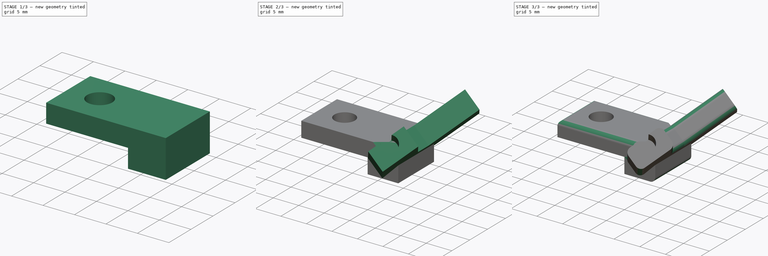
[diagram: build sequence overview — one tinted view per stage of 3, left to right]
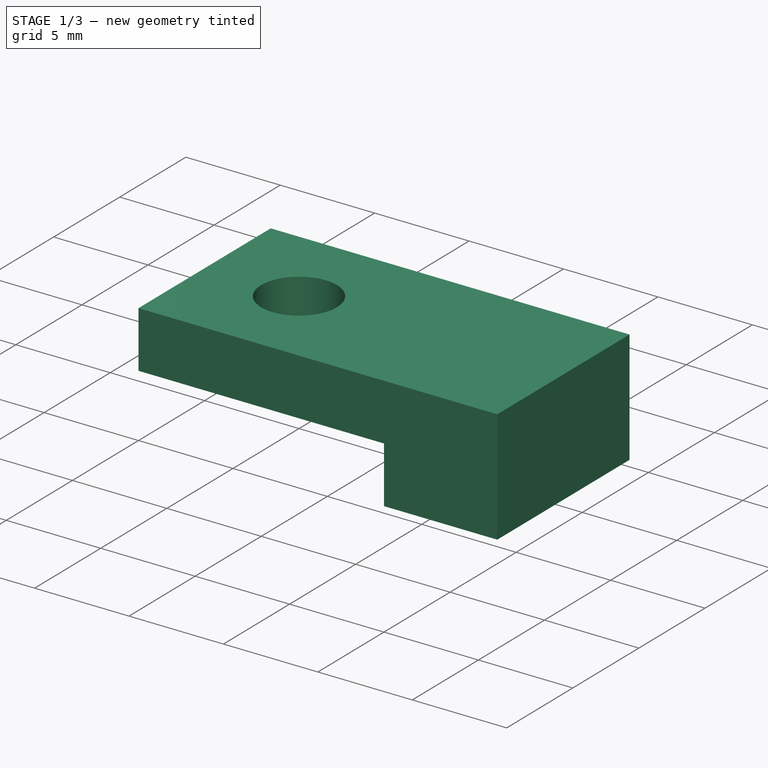
[diagram: stage 1 of 3 — iso view after this stage's code; geometry added in this stage tinted green]
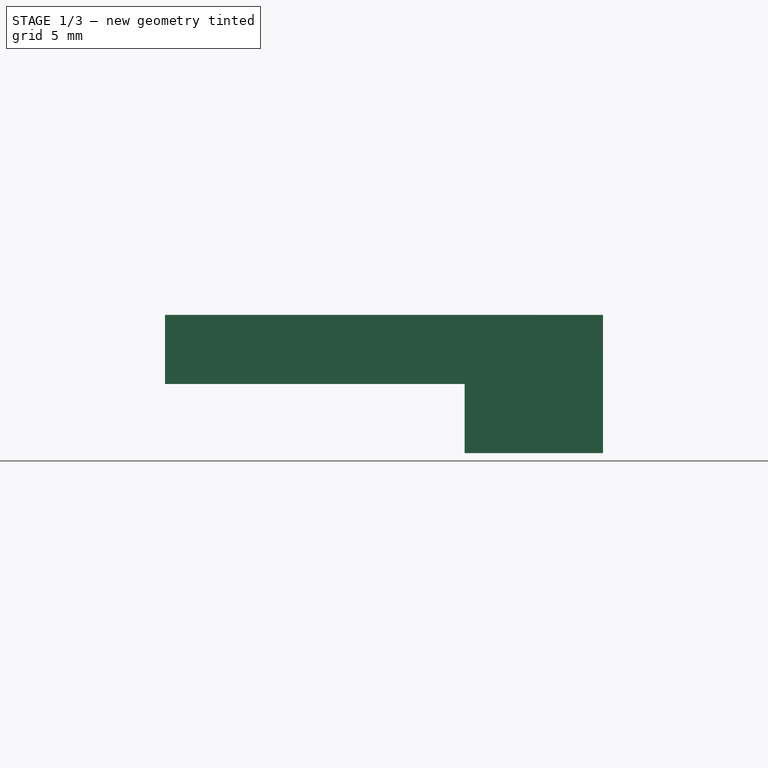
[diagram: stage 1 of 3 — front view after this stage's code; geometry added in this stage tinted green]
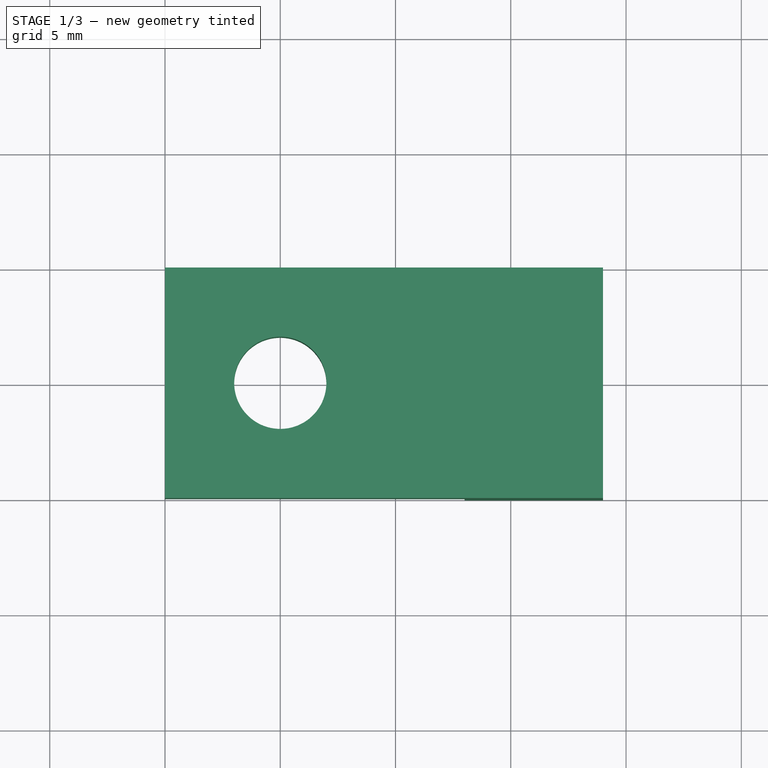
[diagram: stage 1 of 3 — top view after this stage's code; geometry added in this stage tinted green]
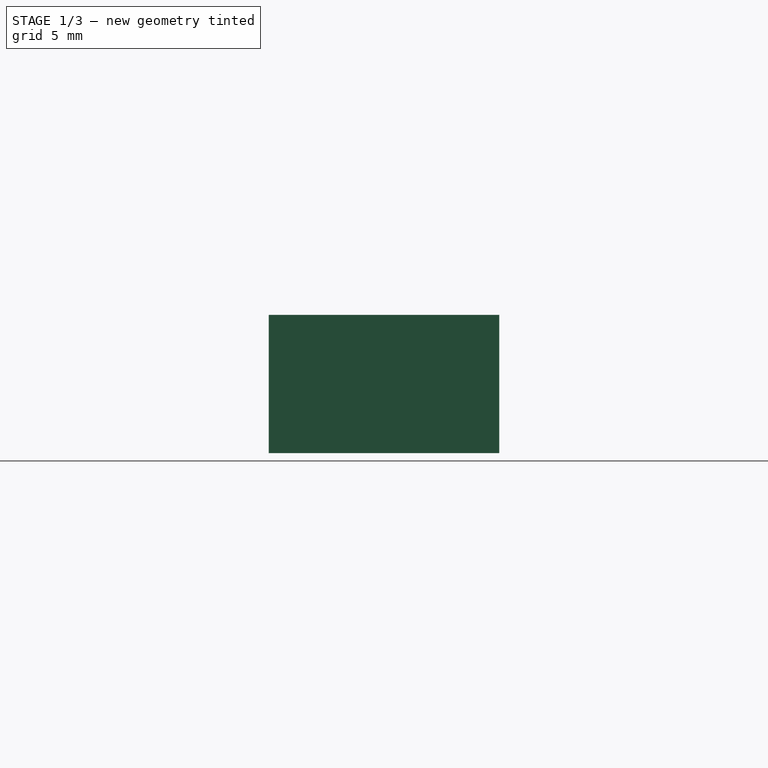
[diagram: stage 1 of 3 — right view after this stage's code; geometry added in this stage tinted green]
FCSTD DOCUMENT  (FreeCAD 0.19R22492 (Git))
Label: antenna_cradle
License: All rights reserved
LicenseURL: http://en.wikipedia.org/wiki/All_rights_reserved
objects: Sketcher::SketchObject×5, PartDesign::Pad×2, PartDesign::SubtractivePipe×2, PartDesign::Pocket×1, PartDesign::Plane×1, PartDesign::Fillet×1, PartDesign::Body×1
note: 19 computed .brp shape members not serialized (recipe doc carries the construction recipe); baked Part::Feature solids carry a one-line shape summary decoded from their .brp

FEATURE [Sketcher::SketchObject] Sketch
  MapMode = 5
  Placement = pos=(0,0,0) rot=(1,0,0;1.5708rad)
  Support = -> [XZ_Plane]
  sketch-geometry (6):
    g0: LineSegment StartX=-5 StartY=0 StartZ=0 EndX=-5 EndY=-3 EndZ=0
    g1: LineSegment StartX=-5 StartY=-3 StartZ=0 EndX=8 EndY=-3 EndZ=0
    g2: LineSegment StartX=8 StartY=-3 StartZ=0 EndX=8 EndY=-6 EndZ=0
    g3: LineSegment StartX=8 StartY=-6 StartZ=0 EndX=14 EndY=-6 EndZ=0
    g4: LineSegment StartX=14 StartY=-6 StartZ=0 EndX=14 EndY=0 EndZ=0
    g5: LineSegment StartX=14 StartY=0 StartZ=0 EndX=-5 EndY=0 EndZ=0
  constraints (18):
    c: Coincident(g0,g1)
    c: Horizontal(g1)
    c: Coincident(g1,g2)
    c: Coincident(g2,g3)
    c: Horizontal(g3)
    c: Coincident(g3,g4)
    c: Coincident(g5,g0)
    c: Vertical(g0)
    c: Vertical(g2)
    c: Vertical(g4)
    c: Horizontal(g5)
    c: DistanceX(g0,g-1) = 5
    c: DistanceX(g-1,g1) = 8
    c: DistanceY(g0,g0) = 3
    c: DistanceY(g2,g2) = 3
    c: DistanceX(g3,g3) = 6
    c: PointOnObject(g-1,g5)
    c: Coincident(g4,g5)
FEATURE [PartDesign::Pad] Pad
  Direction = (1,1,1)
  Length = 10
  Length2 = 100
  Midplane = true
  Placement = pos=(0,0,0) rot=(1,0,0;1.5708rad)
  Profile = -> Sketch
  Type = 0
FEATURE [Sketcher::SketchObject] Sketch001
  MapMode = 5
  Placement = pos=(0,0,0) rot=(0,0,1;3.14159rad)
  Support = -> [Pad]
  sketch-geometry (1):
    g0: Circle CenterX=0 CenterY=0 CenterZ=0 NormalX=0 NormalY=0 NormalZ=1 AngleXU=0 Radius=2
  constraints (2):
    c: Coincident(g0,g-1)
    c: Diameter(g0) = 4
FEATURE [PartDesign::Pocket] Pocket
  BaseFeature = -> Pad
  Length = 5
  Length2 = 100
  Placement = pos=(0,0,0) rot=(1,0,0;1.5708rad)
  Profile = -> Sketch001
  Type = 0
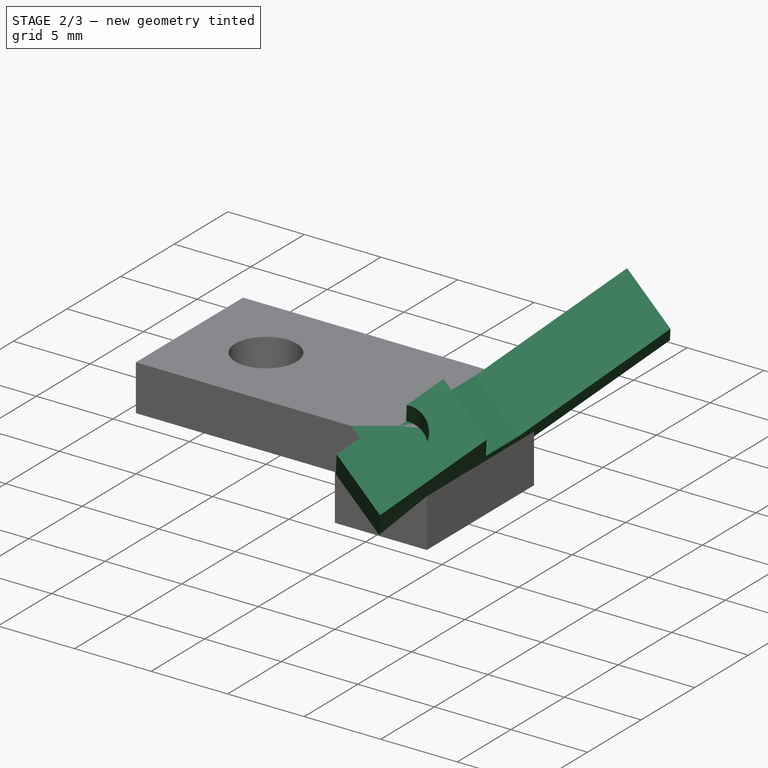
[diagram: stage 2 of 3 — iso view after this stage's code; geometry added in this stage tinted green]
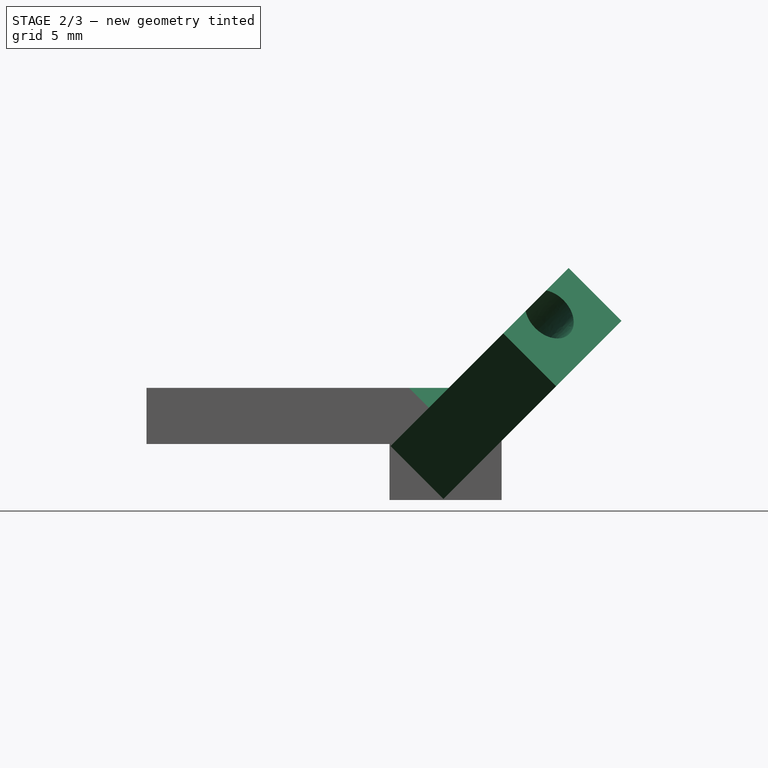
[diagram: stage 2 of 3 — front view after this stage's code; geometry added in this stage tinted green]
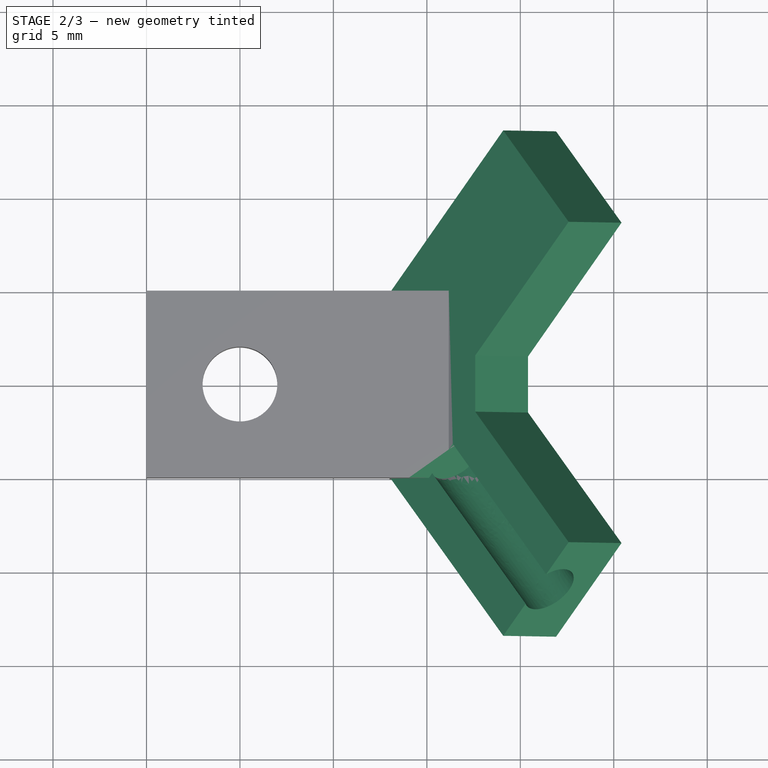
[diagram: stage 2 of 3 — top view after this stage's code; geometry added in this stage tinted green]
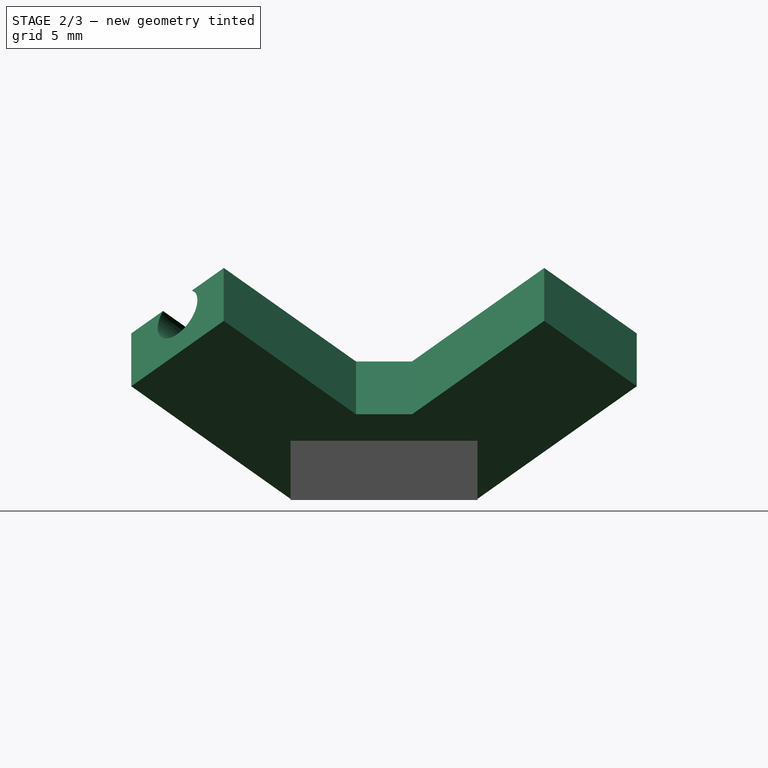
[diagram: stage 2 of 3 — right view after this stage's code; geometry added in this stage tinted green]
FEATURE [PartDesign::Plane] DatumPlane
  AttachmentOffset = pos=(0,0,0) rot=(0.862856,-0.357407,-0.357407;1.71777rad)
  Length = 82.6027
  MapMode = 7
  Placement = pos=(14,5,-1.1e-15) rot=(0,1,0;2.35619rad)
  ResizeMode = 0
  Support = -> [Pocket]
  Width = 61.8921
FEATURE [Sketcher::SketchObject] Sketch002
  ExternalGeometry = -> [Pocket]
  MapMode = 5
  Placement = pos=(14,5,-1.8e-15) rot=(0,1,0;2.35619rad)
  Support = -> [DatumPlane]
  sketch-geometry (9):
    g0: LineSegment StartX=6.39949 StartY=0 StartZ=0 EndX=-2.12132 EndY=8.52082 EndZ=0
    g1: LineSegment StartX=-2.12132 StartY=8.52082 StartZ=0 EndX=-7.07107 EndY=3.57107 EndZ=0
    g2: LineSegment StartX=-7.07107 StartY=3.57107 StartZ=0 EndX=-9e-16 EndY=-3.5 EndZ=0
    g3: LineSegment StartX=-1.2e-15 StartY=-6.5 StartZ=0 EndX=-7.07107 EndY=-13.5711 EndZ=0
    g4: LineSegment StartX=-7.07107 StartY=-13.5711 StartZ=0 EndX=-2.12134 EndY=-18.5208 EndZ=0
    g5: LineSegment StartX=-2.12134 StartY=-18.5208 StartZ=0 EndX=6.39949 EndY=-10 EndZ=0
    g6: LineSegment [constr] StartX=-1.8e-15 StartY=-10 StartZ=0 EndX=6.39949 EndY=-10 EndZ=0
    g7: LineSegment StartX=6.39949 StartY=0 StartZ=0 EndX=6.39949 EndY=-10 EndZ=0
    g8: LineSegment StartX=-6e-16 StartY=-3.5 StartZ=0 EndX=-1.2e-15 EndY=-6.5 EndZ=0
  constraints (26):
    c: PointOnObject(g0,g-1)
    c: PointOnObject(g2,g-3)
    c: Parallel(g2,g0)
    c: Distance(g2) = 10
    c: Coincident(g1,g2)
    c: Coincident(g1,g0)
    c: PointOnObject(g3,g-3)
    c: Coincident(g3,g4)
    c: Coincident(g4,g5)
    c: Perpendicular(g2,g3)
    c: Equal(g1,g4)
    c: Equal(g2,g3)
    c: Coincident(g6,g-3)
    c: Coincident(g6,g5)
    c: Parallel(g6,g-1)
    c: Vertical(g0,g5)
    c: Parallel(g5,g3)
    c: Distance(g2,g3) = 3
    c: Distance(g-1,g2) = 3.5
    c: Angle(g2,g-3) = 2.35619
    c: Coincident(g7,g0)
    c: Coincident(g7,g5)
    c: Coincident(g8,g2)
    c: Coincident(g8,g3)
    c: Distance(g1,g0) = 7
    c: Perpendicular(g0,g1)
FEATURE [PartDesign::Pad] Pad001
  BaseFeature = -> Pocket
  Direction = (1,1,1)
  Length = 4
  Length2 = 100
  Midplane = true
  Placement = pos=(0,0,0) rot=(1,0,0;1.5708rad)
  Profile = -> Sketch002
  Type = 0
FEATURE [Sketcher::SketchObject] Sketch003  label="Antenna1 holder"
  ExternalGeometry = -> [Pad001]
  MapMode = 5
  Placement = pos=(9.03037,-12.7708,9.03037) rot=(0.863949,0.447216,0.231495;1.07959rad)
  Support = -> [Pad001]
  sketch-geometry (6):
    g0: ArcOfCircle CenterX=8.6909 CenterY=-3.15788 CenterZ=0 NormalX=0 NormalY=0 NormalZ=1 AngleXU=0 Radius=1.5 StartAngle=3.34933 EndAngle=7.98609
    g1: LineSegment StartX=7.22315 StartY=-3.46724 StartZ=0 EndX=6.81901 EndY=-4.03879 EndZ=0
    g2: LineSegment StartX=6.81901 StartY=-4.03879 StartZ=0 EndX=4.77776 EndY=-2.59542 EndZ=0
    g3: LineSegment StartX=4.77776 StartY=-2.59542 StartZ=0 EndX=6.79849 EndY=0.262322 EndZ=0
    g4: LineSegment StartX=6.79849 StartY=0.262322 StartZ=0 EndX=8.83973 EndY=-1.18105 EndZ=0
    g5: LineSegment StartX=8.83973 StartY=-1.18105 StartZ=0 EndX=8.49332 EndY=-1.67095 EndZ=0
  constraints (19):
    c: PointOnObject(g0,g-3)
    c: Diameter(g0) = 3
    c: PointOnObject(g0,g-3)
    c: Distance(g0,g-3) = 2.4
    c: Distance(g0,g0) = 2.2
    c: Coincident(g0,g1)
    c: Coincident(g1,g2)
    c: Coincident(g2,g3)
    c: Coincident(g3,g4)
    c: PointOnObject(g4,g-3)
    c: Coincident(g4,g5)
    c: Coincident(g5,g0)
    c: Parallel(g2,g4)
    c: Parallel(g3,g-3)
    c: PointOnObject(g1,g-3)
    c: Distance(g2,g1) = 2.5
    c: Distance(g4,g-3) = 1.8
    c: Distance(g2,g3) = 3.5
    c: Perpendicular(g-3,g2)
FEATURE [PartDesign::SubtractivePipe] SubtractivePipe
  AuxilleryCurvelinear = true
  AuxillerySpineTangent = false
  BaseFeature = -> Pad001
  Binormal = (0,0,0)
  Mode = 0
  Placement = pos=(0,0,0) rot=(1,0,0;1.5708rad)
  Profile = -> Sketch003
  Spine = -> Pad001 [Edge27]
  SpineTangent = false
  Transformation = 0
  Transition = 0
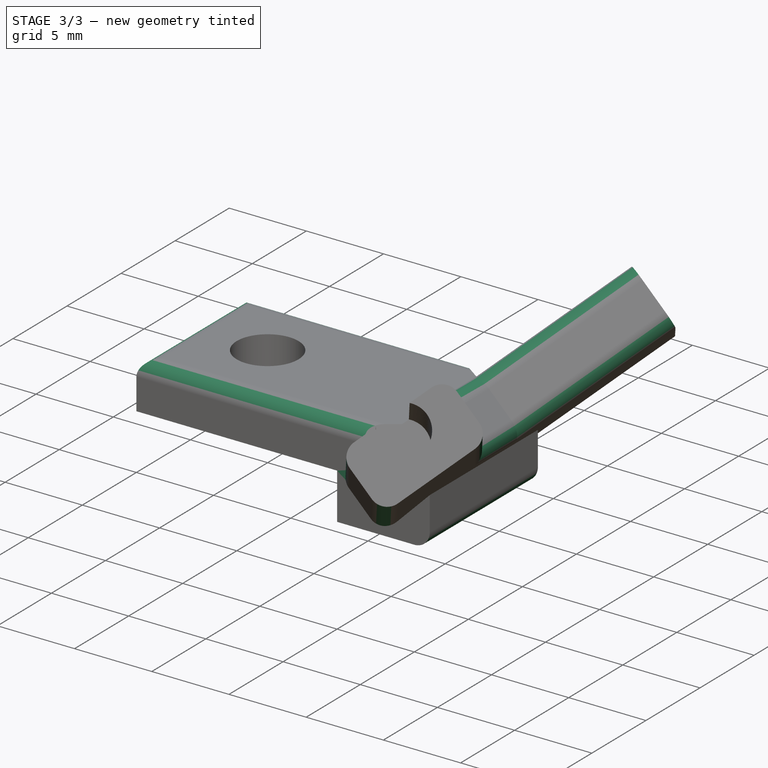
[diagram: stage 3 of 3 — iso view after this stage's code; geometry added in this stage tinted green]
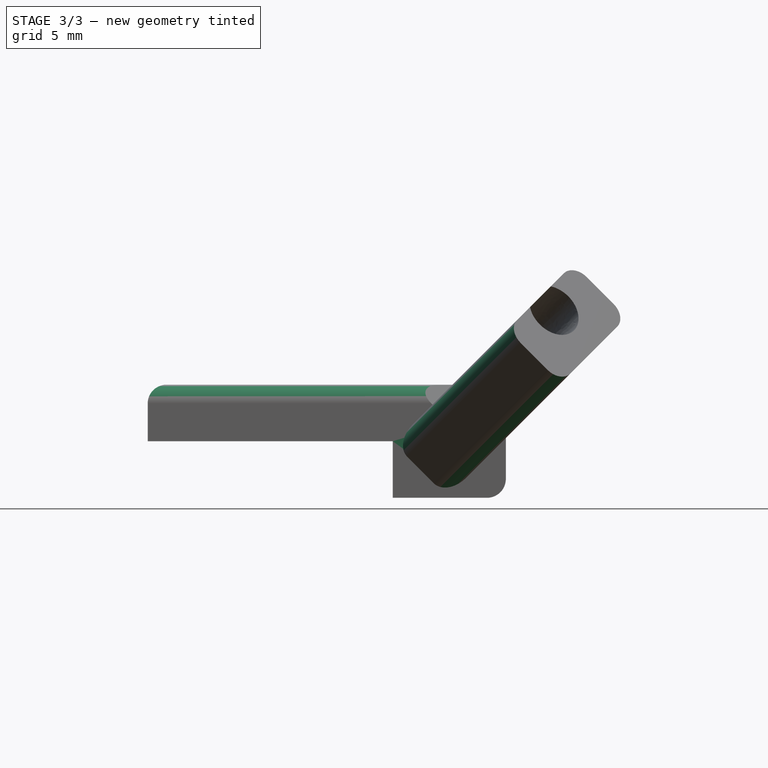
[diagram: stage 3 of 3 — front view after this stage's code; geometry added in this stage tinted green]
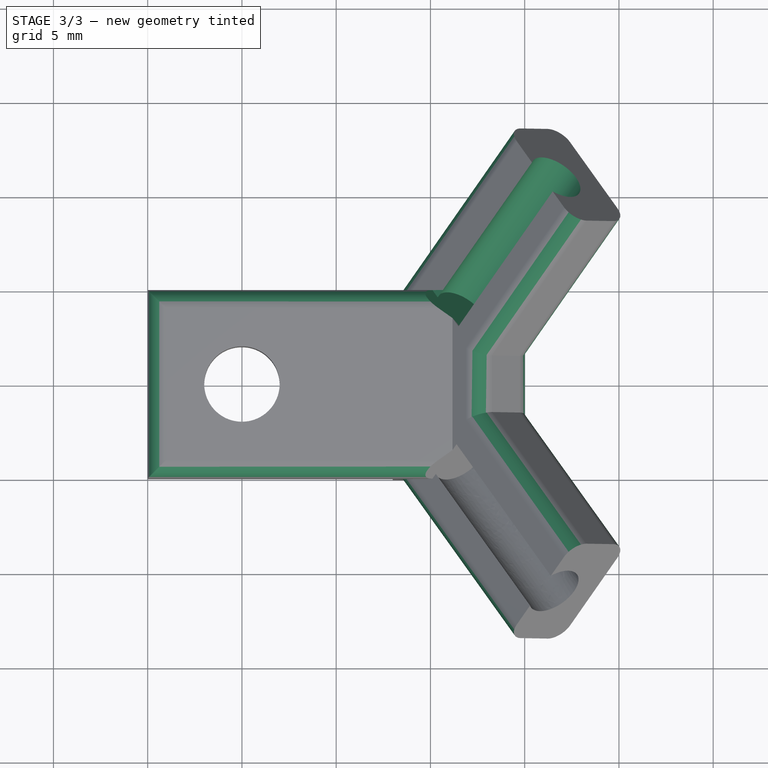
[diagram: stage 3 of 3 — top view after this stage's code; geometry added in this stage tinted green]
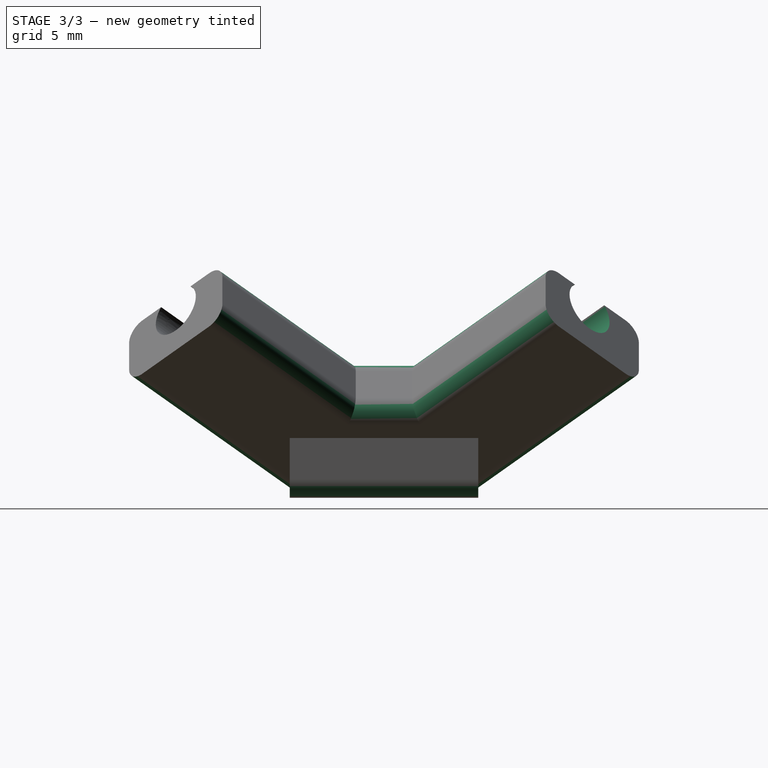
[diagram: stage 3 of 3 — right view after this stage's code; geometry added in this stage tinted green]
FEATURE [Sketcher::SketchObject] Sketch004  label="Antenna2 holder"
  ExternalGeometry = -> [SubtractivePipe]
  MapMode = 5
  Placement = pos=(9.03033,12.7708,9.03033) rot=(-0.86395,0.447214,-0.231495;1.07959rad)
  Support = -> [SubtractivePipe]
  sketch-geometry (6):
    g0: ArcOfCircle CenterX=8.8064 CenterY=2.99455 CenterZ=0 NormalX=0 NormalY=0 NormalZ=1 AngleXU=0 Radius=1.5 StartAngle=4.58028 EndAngle=9.21705
    g1: LineSegment StartX=8.60882 StartY=1.50762 StartZ=0 EndX=8.83976 EndY=1.18102 EndZ=0
    g2: LineSegment StartX=8.83976 StartY=1.18102 StartZ=0 EndX=6.79852 EndY=-0.262357 EndZ=0
    g3: LineSegment StartX=6.79852 StartY=-0.262357 StartZ=0 EndX=4.77779 EndY=2.59538 EndZ=0
    g4: LineSegment StartX=4.77779 StartY=2.59538 StartZ=0 EndX=6.81903 EndY=4.03876 EndZ=0
    g5: LineSegment StartX=6.81903 StartY=4.03876 StartZ=0 EndX=7.33865 EndY=3.30391 EndZ=0
  constraints (19):
    c: PointOnObject(g0,g-3)
    c: PointOnObject(g0,g-3)
    c: Diameter(g0) = 3
    c: Coincident(g0,g1)
    c: Coincident(g1,g2)
    c: Coincident(g2,g3)
    c: Coincident(g3,g4)
    c: PointOnObject(g4,g-3)
    c: Coincident(g4,g5)
    c: Coincident(g5,g0)
    c: Distance(g0,g0) = 2.2
    c: Distance(g1,g-3) = 1.8
    c: PointOnObject(g1,g-3)
    c: Distance(g-3,g0) = 2.2
    c: Distance(g3,g2) = 3.5
    c: Distance(g4) = 2.5
    c: Perpendicular(g5,g4)
    c: Parallel(g4,g2)
    c: Parallel(g3,g5)
FEATURE [PartDesign::SubtractivePipe] SubtractivePipe001
  AuxilleryCurvelinear = true
  AuxillerySpineTangent = false
  BaseFeature = -> SubtractivePipe
  Binormal = (0,0,0)
  Mode = 0
  Placement = pos=(0,0,0) rot=(1,0,0;1.5708rad)
  Profile = -> Sketch004
  Spine = -> SubtractivePipe [Edge35]
  SpineTangent = false
  Transformation = 0
  Transition = 0
FEATURE [PartDesign::Fillet] Fillet
  Base = -> SubtractivePipe001 [Edge59,Edge53,Edge51,Edge55,Edge57,Edge35,Edge60,Edge37,Edge49,Edge1,Edge5,Edge6,Edge56,Edge36]
  BaseFeature = -> SubtractivePipe001
  Placement = pos=(0,0,0) rot=(1,0,0;1.5708rad)
  Radius = 1
  SupportTransform = false
FEATURE [PartDesign::Body] Body
  Group = -> [Sketch,Pad,Sketch001,Pocket,DatumPlane,Sketch002,Pad001,Sketch003,SubtractivePipe,Sketch004,SubtractivePipe001,Fillet]
  Origin = -> Origin
  Tip = -> Fillet
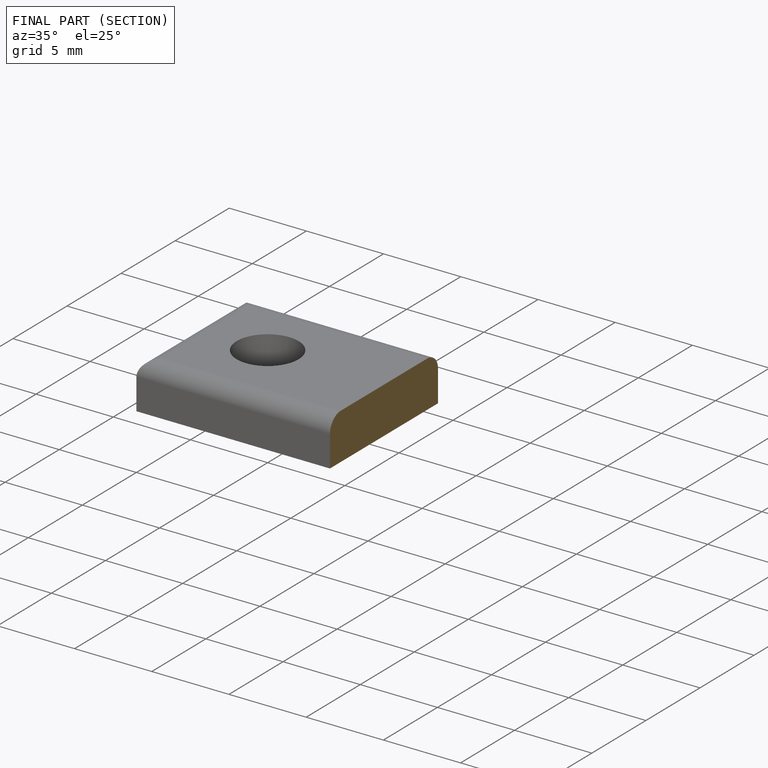
[diagram: finished part — half-section view (interior)]
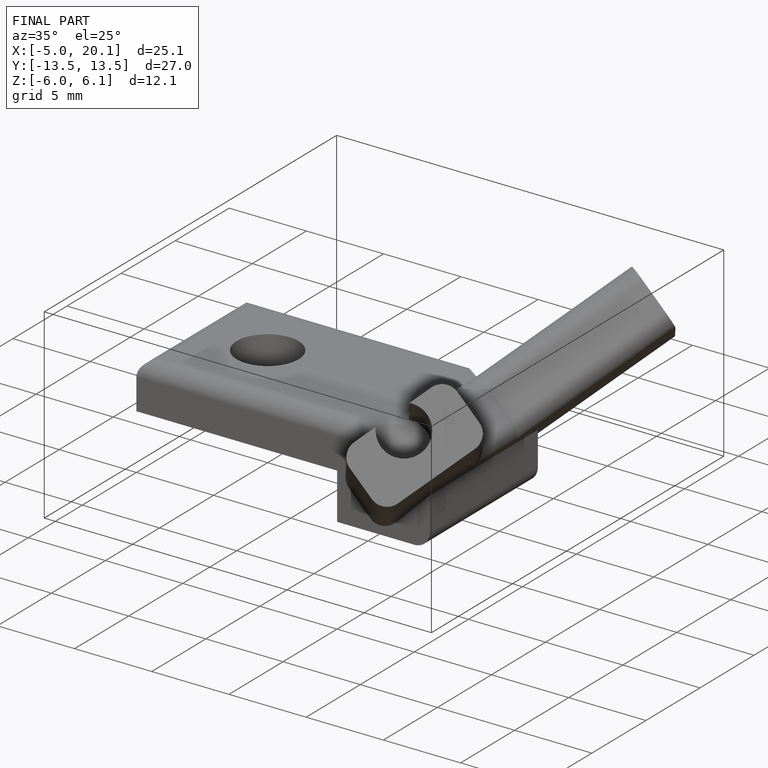
[diagram: finished part — iso view with bounding-box wireframe]
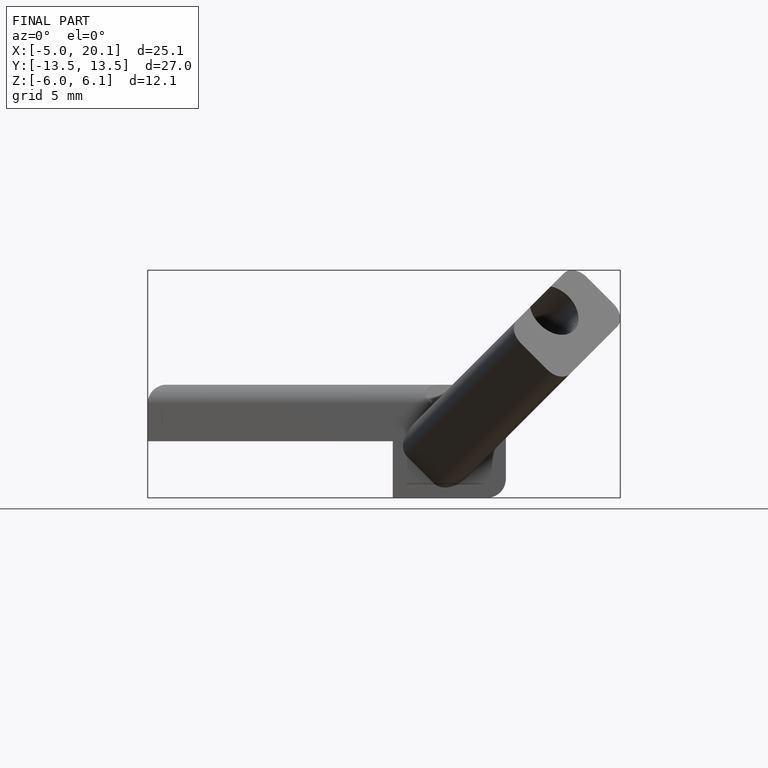
[diagram: finished part — front view with bounding-box wireframe]
